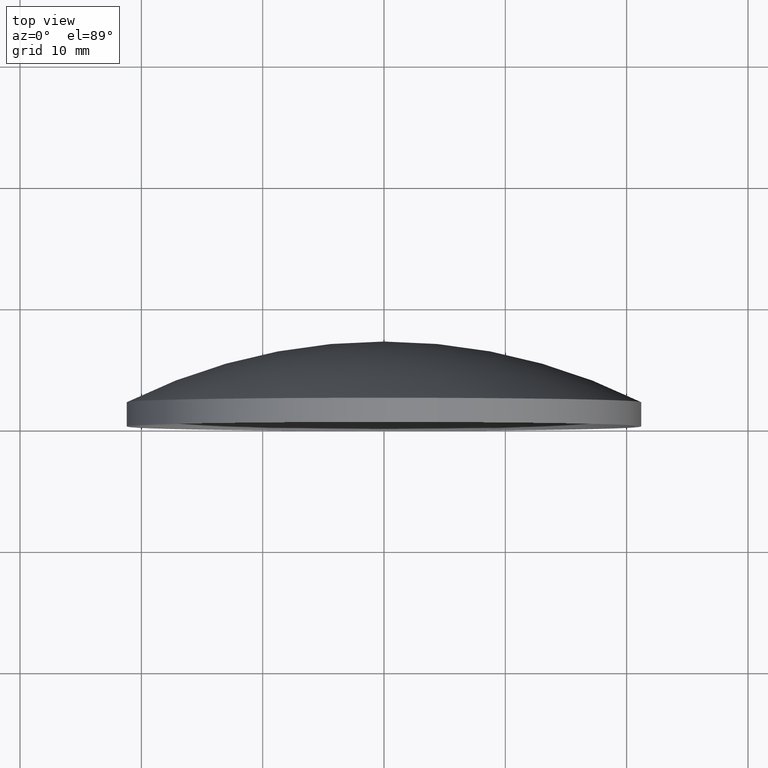
[diagram: clean part render]
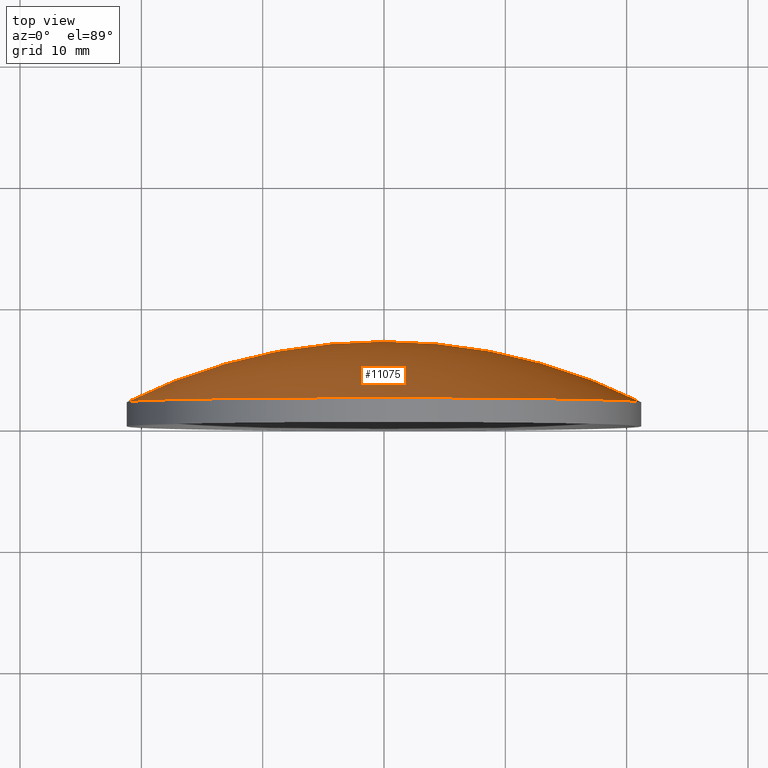
[diagram: same view with one face highlighted and labeled with its STEP entity id]
A machine part, top view. The second image highlights one B-rep face of the part: STEP entity #11075.
In plain terms, the highlighted spherical surface has radius 47.444 mm.
Its self-contained STEP definition (entity closure, byte-faithful):
#58 = CIRCLE ( 'NONE', #11559, 47.44399999999998800 ) ;
#253 = EDGE_LOOP ( 'NONE', ( #5836, #6743, #2970 ) ) ;
#260 = CIRCLE ( 'NONE', #6340, 21.20000000000001700 ) ;
#394 = CIRCLE ( 'NONE', #7006, 47.44399999999998800 ) ;
#639 = AXIS2_PLACEMENT_3D ( 'NONE', #8747, #3308, #9027 ) ;
#1820 = FACE_OUTER_BOUND ( 'NONE', #253, .T. ) ;
#2323 = DIRECTION ( 'NONE',  ( 0.0000000000000000000, 0.0000000000000000000, -1.000000000000000000 ) ) ;
#2559 = CARTESIAN_POINT ( 'NONE',  ( 1.386522870055565900E-014, -40.44399999999998800, 0.0000000000000000000 ) ) ;
#2850 = DIRECTION ( 'NONE',  ( 1.224646799147353200E-016, -8.490003973790729900E-031, 1.000000000000000000 ) ) ;
#2970 = ORIENTED_EDGE ( 'NONE', *, *, #4142, .F. ) ;
#3308 = DIRECTION ( 'NONE',  ( -0.0000000000000000000, 0.0000000000000000000, 1.000000000000000000 ) ) ;
#3515 = DIRECTION ( 'NONE',  ( -6.932614350277811200E-015, -1.000000000000000000, -0.0000000000000000000 ) ) ;
#4142 = EDGE_CURVE ( 'NONE', #7368, #5969, #260, .T. ) ;
#5348 = CARTESIAN_POINT ( 'NONE',  ( 21.19999999999999600, 2.000000000000008900, 0.0000000000000000000 ) ) ;
#5424 = VERTEX_POINT ( 'NONE', #5656 ) ;
#5656 = CARTESIAN_POINT ( 'NONE',  ( 3.456812910720733900E-013, 6.999999999999999100, 0.0000000000000000000 ) ) ;
#5836 = ORIENTED_EDGE ( 'NONE', *, *, #6445, .F. ) ;
#5969 = VERTEX_POINT ( 'NONE', #11460 ) ;
#6340 = AXIS2_PLACEMENT_3D ( 'NONE', #9156, #3515, #10119 ) ;
#6445 = EDGE_CURVE ( 'NONE', #5424, #7368, #394, .T. ) ;
#6743 = ORIENTED_EDGE ( 'NONE', *, *, #11188, .T. ) ;
#7006 = AXIS2_PLACEMENT_3D ( 'NONE', #2559, #2323, #12002 ) ;
#7368 = VERTEX_POINT ( 'NONE', #5348 ) ;
#8317 = DIRECTION ( 'NONE',  ( 1.000000000000000000, 0.0000000000000000000, -1.224646799147353200E-016 ) ) ;
#8493 = CARTESIAN_POINT ( 'NONE',  ( 1.386522870055565900E-014, -40.44399999999998800, 0.0000000000000000000 ) ) ;
#8747 = CARTESIAN_POINT ( 'NONE',  ( 1.386522870055565900E-014, -40.44399999999998800, 0.0000000000000000000 ) ) ;
#9027 = DIRECTION ( 'NONE',  ( 1.000000000000000000, -6.873956948900595300E-015, 0.0000000000000000000 ) ) ;
#9040 = SPHERICAL_SURFACE ( 'NONE', #639, 47.44399999999998800 ) ;
#9156 = CARTESIAN_POINT ( 'NONE',  ( -2.079784305083228800E-014, 2.000000000000155900, 0.0000000000000000000 ) ) ;
#10119 = DIRECTION ( 'NONE',  ( 1.000000000000000000, -6.934802574954447400E-015, 0.0000000000000000000 ) ) ;
#11075 = ADVANCED_FACE ( 'NONE', ( #1820 ), #9040, .T. ) ;
#11188 = EDGE_CURVE ( 'NONE', #5424, #5969, #58, .T. ) ;
#11460 = CARTESIAN_POINT ( 'NONE',  ( -21.20000000000003800, 2.000000000000302900, 2.596251214192391500E-015 ) ) ;
#11559 = AXIS2_PLACEMENT_3D ( 'NONE', #8493, #2850, #8317 ) ;
#12002 = DIRECTION ( 'NONE',  ( -1.000000000000000000, 0.0000000000000000000, 0.0000000000000000000 ) ) ;